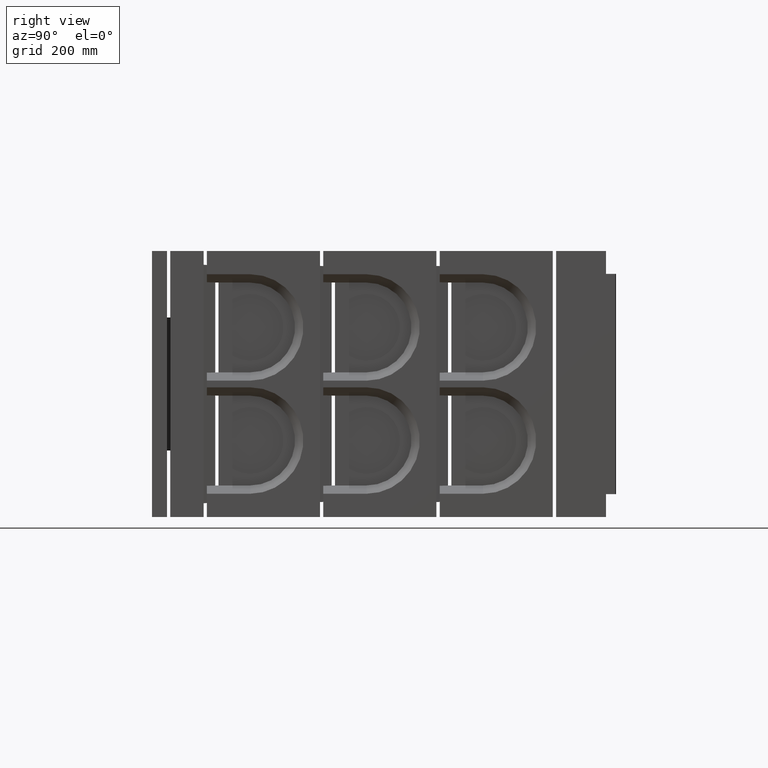
[diagram: clean part render]
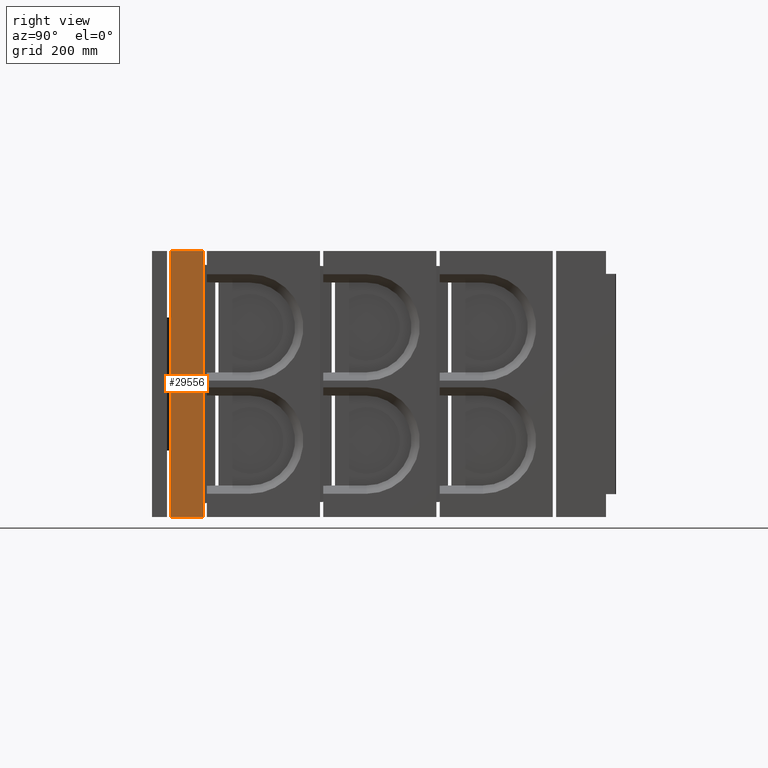
[diagram: same view with one face highlighted and labeled with its STEP entity id]
A machine part, right view. The second image highlights one B-rep face of the part: STEP entity #29556.
In plain terms, the highlighted planar face has unit normal (1, -0, -0).
Its self-contained STEP definition (entity closure, byte-faithful):
#1211 = ORIENTED_EDGE ( 'NONE', *, *, #28559, .T. ) ;
#2327 = VECTOR ( 'NONE', #41690, 1000.000000000000000 ) ;
#3075 = VECTOR ( 'NONE', #18927, 1000.000000000000000 ) ;
#3547 = VERTEX_POINT ( 'NONE', #17005 ) ;
#3587 = VECTOR ( 'NONE', #29096, 1000.000000000000000 ) ;
#6536 = CARTESIAN_POINT ( 'NONE',  ( 750.0000000000000000, 154.9999999999995168, 400.0000000000000000 ) ) ;
#6654 = DIRECTION ( 'NONE',  ( 2.736911063134408342E-48, 2.736911063134408342E-48, 1.000000000000000000 ) ) ;
#7286 = VERTEX_POINT ( 'NONE', #40485 ) ;
#7752 = DIRECTION ( 'NONE',  ( -1.665334536937736043E-16, -1.000000000000000000, -2.736911063134407734E-48 ) ) ;
#8774 = CARTESIAN_POINT ( 'NONE',  ( 750.0000000000000000, 54.99999999999949551, 400.0000000000000000 ) ) ;
#9091 = VERTEX_POINT ( 'NONE', #39666 ) ;
#9468 = EDGE_CURVE ( 'NONE', #7286, #35145, #23604, .T. ) ;
#11513 = FACE_OUTER_BOUND ( 'NONE', #13685, .T. ) ;
#12306 = LINE ( 'NONE', #8774, #3075 ) ;
#12843 = LINE ( 'NONE', #18790, #3587 ) ;
#13685 = EDGE_LOOP ( 'NONE', ( #1211, #20836, #27095, #25785 ) ) ;
#15577 = AXIS2_PLACEMENT_3D ( 'NONE', #18484, #42099, #7752 ) ;
#16940 = CARTESIAN_POINT ( 'NONE',  ( 750.0000000000000000, 154.9999999999995168, 400.0000000000000000 ) ) ;
#17005 = CARTESIAN_POINT ( 'NONE',  ( 750.0000000000000000, 54.99999999999949551, 400.0000000000000000 ) ) ;
#18484 = CARTESIAN_POINT ( 'NONE',  ( 750.0000000000000000, 54.99999999999949551, 400.0000000000000000 ) ) ;
#18790 = CARTESIAN_POINT ( 'NONE',  ( 750.0000000000000000, 54.99999999999949551, -400.0000000000000000 ) ) ;
#18927 = DIRECTION ( 'NONE',  ( 1.665334536937735797E-16, 1.000000000000000000, 2.736911063134407734E-48 ) ) ;
#20764 = LINE ( 'NONE', #34461, #2327 ) ;
#20836 = ORIENTED_EDGE ( 'NONE', *, *, #9468, .T. ) ;
#23604 = LINE ( 'NONE', #16940, #37035 ) ;
#25248 = PLANE ( 'NONE',  #15577 ) ;
#25785 = ORIENTED_EDGE ( 'NONE', *, *, #27709, .T. ) ;
#27095 = ORIENTED_EDGE ( 'NONE', *, *, #39409, .F. ) ;
#27709 = EDGE_CURVE ( 'NONE', #3547, #9091, #20764, .T. ) ;
#28559 = EDGE_CURVE ( 'NONE', #9091, #7286, #12843, .T. ) ;
#29096 = DIRECTION ( 'NONE',  ( 1.665334536937735797E-16, 1.000000000000000000, 2.736911063134407734E-48 ) ) ;
#29556 = ADVANCED_FACE ( 'NONE', ( #11513 ), #25248, .T. ) ;
#34461 = CARTESIAN_POINT ( 'NONE',  ( 750.0000000000000000, 54.99999999999949551, 400.0000000000000000 ) ) ;
#35145 = VERTEX_POINT ( 'NONE', #6536 ) ;
#37035 = VECTOR ( 'NONE', #6654, 1000.000000000000000 ) ;
#39409 = EDGE_CURVE ( 'NONE', #3547, #35145, #12306, .T. ) ;
#39666 = CARTESIAN_POINT ( 'NONE',  ( 750.0000000000000000, 54.99999999999949551, -400.0000000000000000 ) ) ;
#40485 = CARTESIAN_POINT ( 'NONE',  ( 750.0000000000000000, 154.9999999999995168, -400.0000000000000000 ) ) ;
#41690 = DIRECTION ( 'NONE',  ( -2.736911063134408342E-48, -2.736911063134408342E-48, -1.000000000000000000 ) ) ;
#42099 = DIRECTION ( 'NONE',  ( 1.000000000000000000, -1.665334536937736043E-16, -5.473822126268816076E-48 ) ) ;